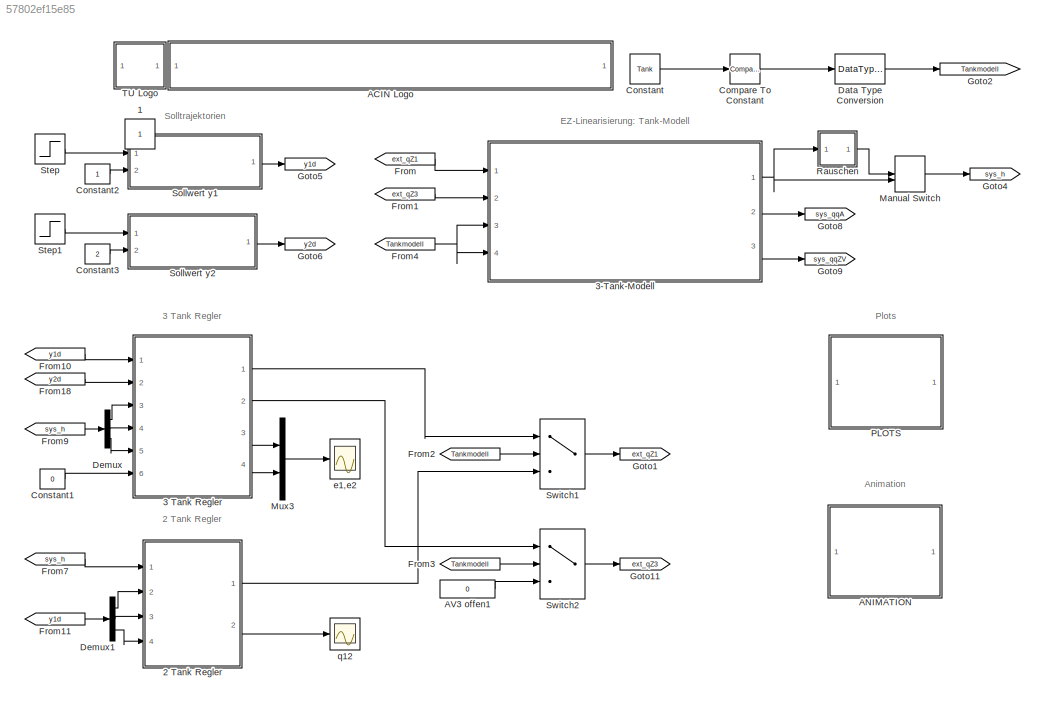
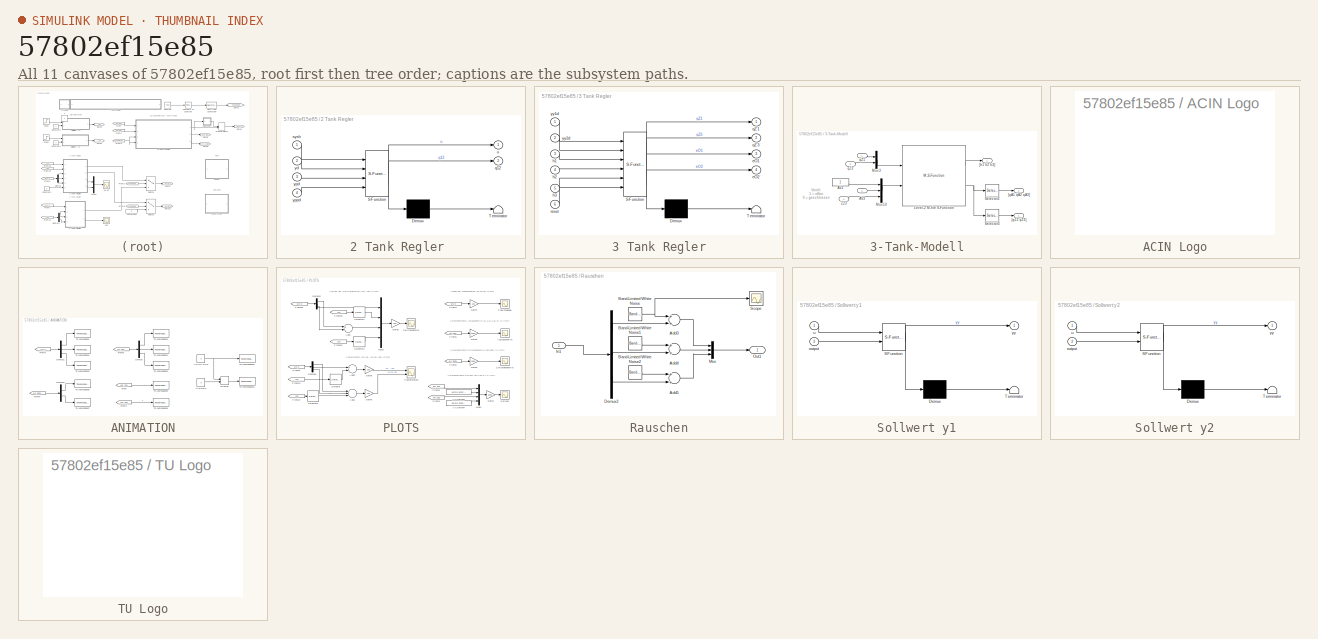
[diagram: thumbnail index - all 11 canvases of the model, root first then tree order]
MODEL slx_57802ef15e85
KIND model
CONFIG AbsTol = auto
CONFIG FixedStep = auto
CONFIG InitFcn = set_parameter
CONFIG MaxStep = 1e-1
CONFIG MinStep = auto
CONFIG RelTol = 1e-3
CONFIG SampleTimeConstraint = Unconstrained
CONFIG Solver = ode45
CONFIG SolverMode = Auto
CONFIG SolverName = ode45
CONFIG StartTime = 0.0
CONFIG StopFcn = if(exist('animation')>0 & exist('h1_out')>0)\nanimation(h1_out,h2_out,h3_out,q12_out,q23_out,a1_out,a2_out,a3_out,z1_out,z3_out,parSys.Ta,Tank,anim_on,video_on);\nend
CONFIG StopTime = 400
BLOCK [Constant] 1
  IOType = siggen
BLOCK [SubSystem] 2 Tank Regler 
  ErrorFcn = Stateflow.Translate.translate
  PermitHierarchicalResolution = ExplicitOnly
  Ports = [4, 2]
  RequestExecContextInheritance = off
  SFBlockType = MATLAB Function
  TreatAsAtomicUnit = on
  Variant = off
BLOCK [Demux] 2 Tank Regler / Demux 
  Outputs = 1
  Ports = [1, 1]
BLOCK [S-Function] 2 Tank Regler / SFunction 
  EnableBusSupport = on
  FunctionName = sf_sfun
  Parameters = parInit,parSys
  PortCounts = [4 3]
  Ports = [4, 3]
  SFunctionDeploymentMode = off
  Tag = Stateflow S-Function Tank_Modell_2015b 2
BLOCK [Terminator] 2 Tank Regler / Terminator 
BLOCK [Outport] 2 Tank Regler /q12
  IconDisplay = Port number
  Port = 2
BLOCK [Inport] 2 Tank Regler /sysh
  IconDisplay = Port number
BLOCK [Outport] 2 Tank Regler /u
  IconDisplay = Port number
BLOCK [Inport] 2 Tank Regler /yd
  IconDisplay = Port number
  Port = 2
BLOCK [Inport] 2 Tank Regler /ypd
  IconDisplay = Port number
  Port = 3
BLOCK [Inport] 2 Tank Regler /yppd
  IconDisplay = Port number
  Port = 4
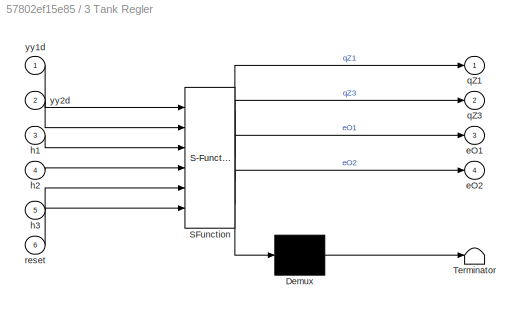
BLOCK [SubSystem] 3 Tank Regler
  ErrorFcn = Stateflow.Translate.translate
  PermitHierarchicalResolution = ExplicitOnly
  Ports = [6, 4]
  RequestExecContextInheritance = off
  SFBlockType = MATLAB Function
  TreatAsAtomicUnit = on
  Variant = off
BLOCK [Demux] 3 Tank Regler/ Demux 
  Outputs = 1
  Ports = [1, 1]
BLOCK [S-Function] 3 Tank Regler/ SFunction 
  EnableBusSupport = on
  FunctionName = sf_sfun
  Parameters = parInit,parSys
  PortCounts = [6 5]
  Ports = [6, 5]
  SFunctionDeploymentMode = off
  Tag = Stateflow S-Function Tank_Modell_2015b 3
BLOCK [Terminator] 3 Tank Regler/ Terminator 
BLOCK [Outport] 3 Tank Regler/eO1
  IconDisplay = Port number
  Port = 3
BLOCK [Outport] 3 Tank Regler/eO2
  IconDisplay = Port number
  Port = 4
BLOCK [Inport] 3 Tank Regler/h1
  IconDisplay = Port number
  Port = 3
BLOCK [Inport] 3 Tank Regler/h2
  IconDisplay = Port number
  Port = 4
BLOCK [Inport] 3 Tank Regler/h3
  IconDisplay = Port number
  Port = 5
BLOCK [Outport] 3 Tank Regler/qZ1
  IconDisplay = Port number
BLOCK [Outport] 3 Tank Regler/qZ3
  IconDisplay = Port number
  Port = 2
BLOCK [Inport] 3 Tank Regler/reset
  IconDisplay = Port number
  Port = 6
BLOCK [Inport] 3 Tank Regler/yy1d
  IconDisplay = Port number
BLOCK [Inport] 3 Tank Regler/yy2d
  IconDisplay = Port number
  Port = 2
BLOCK [SubSystem] 3-Tank-Modell
  Ports = [4, 3]
  RequestExecContextInheritance = off
  UserDataPersistent = on
  Variant = off
BLOCK [Constant] 3-Tank-Modell/AV1
BLOCK [Inport] 3-Tank-Modell/AV3
  IconDisplay = Port number
  Port = 3
BLOCK [M-S-Function] 3-Tank-Modell/Level-2 M-file S-Function
  FunctionName = dreitank_S_m
  Parameters = Atank, rho, eta, g, alphaA1, DA1, alphaA2, A2, alphaA3, DA3, alpha12_0, A12, Dh12, lambdac12, alpha23_0, D23, lambdac23, hmin, h1_0, h2_0, h3_0, qZ1max, qZ3max, flaglimqZ, h_max, h_min
  Ports = [2, 2]
BLOCK [Mux] 3-Tank-Modell/Mux10
  DisplayOption = bar
  Inputs = 3
  Ports = [3, 1]
BLOCK [Mux] 3-Tank-Modell/Mux3
  DisplayOption = bar
  Inputs = 2
  Ports = [2, 1]
BLOCK [Selector] 3-Tank-Modell/Selector2
  IndexOptions = Index vector (dialog)
  Indices = [1 2 3]
  InputPortWidth = 5
  OutputSizes = 1
  Ports = [1, 1]
BLOCK [Selector] 3-Tank-Modell/Selector3
  IndexOptions = Index vector (dialog)
  Indices = [4 5]
  InputPortWidth = 5
  OutputSizes = 1
  Ports = [1, 1]
BLOCK [Inport] 3-Tank-Modell/Z23
  IconDisplay = Port number
  Port = 4
BLOCK [Outport] 3-Tank-Modell/[h1 h2 h3]
  IconDisplay = Port number
BLOCK [Outport] 3-Tank-Modell/[q12 q23]
  IconDisplay = Port number
  Port = 3
BLOCK [Outport] 3-Tank-Modell/[qA1 qA2 qA3]
  IconDisplay = Port number
  Port = 2
BLOCK [Inport] 3-Tank-Modell/qZ1
  IconDisplay = Port number
BLOCK [Inport] 3-Tank-Modell/qZ3
  IconDisplay = Port number
  Port = 2
BLOCK [SubSystem] ACIN Logo
  Ports = []
  RequestExecContextInheritance = off
  UserDataPersistent = on
  Variant = off
BLOCK [SubSystem] ANIMATION
  Ports = []
  RequestExecContextInheritance = off
  UserDataPersistent = on
  Variant = off
BLOCK [Constant] ANIMATION/ANIMATION
  Value = 0
BLOCK [Demux] ANIMATION/Demux
  DisplayOption = bar
  Outputs = 3
  Ports = [1, 3]
BLOCK [Demux] ANIMATION/Demux1
  DisplayOption = bar
  Outputs = 3
  Ports = [1, 3]
BLOCK [Demux] ANIMATION/Demux2
  DisplayOption = bar
  Outputs = 2
  Ports = [1, 2]
BLOCK [From] ANIMATION/From
  GotoTag = ext_qZ1
  TagVisibility = global
BLOCK [From] ANIMATION/From1
  GotoTag = ext_qZ3
  TagVisibility = global
BLOCK [From] ANIMATION/From4
  GotoTag = sys_h
  TagVisibility = global
BLOCK [From] ANIMATION/From5
  GotoTag = sys_qqA
  TagVisibility = global
BLOCK [From] ANIMATION/From6
  GotoTag = sys_qqZV
  TagVisibility = global
BLOCK [MinMax] ANIMATION/MinMax
  InputSameDT = off
  Inputs = 2
  Ports = [2, 1]
  SaturateOnIntegerOverflow = off
BLOCK [ToWorkspace] ANIMATION/To Workspace
  FixptAsFi = on
  MaxDataPoints = inf
  Ports = [1]
  SampleTime = parSys.Ta
  Save2DSignal = 3-D array (concatenate along third dimension)
  VariableName = h1_out
BLOCK [ToWorkspace] ANIMATION/To Workspace1
  FixptAsFi = on
  MaxDataPoints = inf
  Ports = [1]
  SampleTime = parSys.Ta
  Save2DSignal = 3-D array (concatenate along third dimension)
  VariableName = h2_out
BLOCK [ToWorkspace] ANIMATION/To Workspace10
  FixptAsFi = on
  MaxDataPoints = inf
  Ports = [1]
  SampleTime = 50
  Save2DSignal = 3-D array (concatenate along third dimension)
  VariableName = anim_on
BLOCK [ToWorkspace] ANIMATION/To Workspace11
  FixptAsFi = on
  MaxDataPoints = inf
  Ports = [1]
  SampleTime = 50
  Save2DSignal = 3-D array (concatenate along third dimension)
  VariableName = video_on
BLOCK [ToWorkspace] ANIMATION/To Workspace2
  FixptAsFi = on
  MaxDataPoints = inf
  Ports = [1]
  SampleTime = parSys.Ta
  Save2DSignal = 3-D array (concatenate along third dimension)
  VariableName = h3_out
BLOCK [ToWorkspace] ANIMATION/To Workspace3
  FixptAsFi = on
  MaxDataPoints = inf
  Ports = [1]
  SampleTime = parSys.Ta
  Save2DSignal = 3-D array (concatenate along third dimension)
  VariableName = a1_out
BLOCK [ToWorkspace] ANIMATION/To Workspace4
  FixptAsFi = on
  MaxDataPoints = inf
  Ports = [1]
  SampleTime = parSys.Ta
  Save2DSignal = 3-D array (concatenate along third dimension)
  VariableName = a2_out
BLOCK [ToWorkspace] ANIMATION/To Workspace5
  FixptAsFi = on
  MaxDataPoints = inf
  Ports = [1]
  SampleTime = parSys.Ta
  Save2DSignal = 3-D array (concatenate along third dimension)
  VariableName = a3_out
BLOCK [ToWorkspace] ANIMATION/To Workspace6
  FixptAsFi = on
  MaxDataPoints = inf
  Ports = [1]
  SampleTime = parSys.Ta
  Save2DSignal = 3-D array (concatenate along third dimension)
  VariableName = q12_out
BLOCK [ToWorkspace] ANIMATION/To Workspace7
  FixptAsFi = on
  MaxDataPoints = inf
  Ports = [1]
  SampleTime = parSys.Ta
  Save2DSignal = 3-D array (concatenate along third dimension)
  VariableName = q23_out
BLOCK [ToWorkspace] ANIMATION/To Workspace8
  FixptAsFi = on
  MaxDataPoints = inf
  Ports = [1]
  SampleTime = parSys.Ta
  Save2DSignal = 3-D array (concatenate along third dimension)
  VariableName = z1_out
BLOCK [ToWorkspace] ANIMATION/To Workspace9
  FixptAsFi = on
  MaxDataPoints = inf
  Ports = [1]
  SampleTime = parSys.Ta
  Save2DSignal = 3-D array (concatenate along third dimension)
  VariableName = z3_out
BLOCK [Constant] ANIMATION/VIDOEO 
  Value = 0
BLOCK [Constant] AV3 offen1
  Value = 0
BLOCK [Reference] Compare To Constant  REF=simulink/Logic and Bit
Operations/Compare
To Constant
  Ports = [1, 1]
  SourceBlock = simulink/Logic and Bit\nOperations/Compare\nTo Constant
  SourceType = Compare To Constant
BLOCK [Constant] Constant
  Value = Tank
BLOCK [Constant] Constant1
  Value = 0
BLOCK [Constant] Constant2
BLOCK [Constant] Constant3
  Value = 2
BLOCK [DataTypeConversion] Data Type Conversion
  OutDataTypeStr = double
  RndMeth = Floor
  SaturateOnIntegerOverflow = off
BLOCK [Demux] Demux
  DisplayOption = bar
  Outputs = 3
  Ports = [1, 3]
BLOCK [Demux] Demux1
  DisplayOption = bar
  Outputs = 3
  Ports = [1, 3]
BLOCK [From] From
  GotoTag = ext_qZ1
  TagVisibility = global
BLOCK [From] From1
  GotoTag = ext_qZ3
  TagVisibility = global
BLOCK [From] From10
  GotoTag = y1d
  TagVisibility = global
BLOCK [From] From11
  GotoTag = y1d
  TagVisibility = global
BLOCK [From] From18
  GotoTag = y2d
  TagVisibility = global
BLOCK [From] From2
  GotoTag = Tankmodell
  TagVisibility = global
BLOCK [From] From3
  GotoTag = Tankmodell
  TagVisibility = global
BLOCK [From] From4
  GotoTag = Tankmodell
  TagVisibility = global
BLOCK [From] From7
  GotoTag = sys_h
  TagVisibility = global
BLOCK [From] From9
  GotoTag = sys_h
  TagVisibility = global
BLOCK [Goto] Goto1
  GotoTag = ext_qZ1
  TagVisibility = global
BLOCK [Goto] Goto11
  GotoTag = ext_qZ3
  TagVisibility = global
BLOCK [Goto] Goto2
  GotoTag = Tankmodell
  TagVisibility = global
BLOCK [Goto] Goto4
  GotoTag = sys_h
  TagVisibility = global
BLOCK [Goto] Goto5
  GotoTag = y1d
  TagVisibility = global
BLOCK [Goto] Goto6
  GotoTag = y2d
  TagVisibility = global
BLOCK [Goto] Goto8
  GotoTag = sys_qqA
  TagVisibility = global
BLOCK [Goto] Goto9
  GotoTag = sys_qqZV
  TagVisibility = global
BLOCK [ManualSwitch] Manual Switch
  CurrentSetting = 0
BLOCK [Mux] Mux3
  DisplayOption = bar
  Inputs = 2
  Ports = [2, 1]
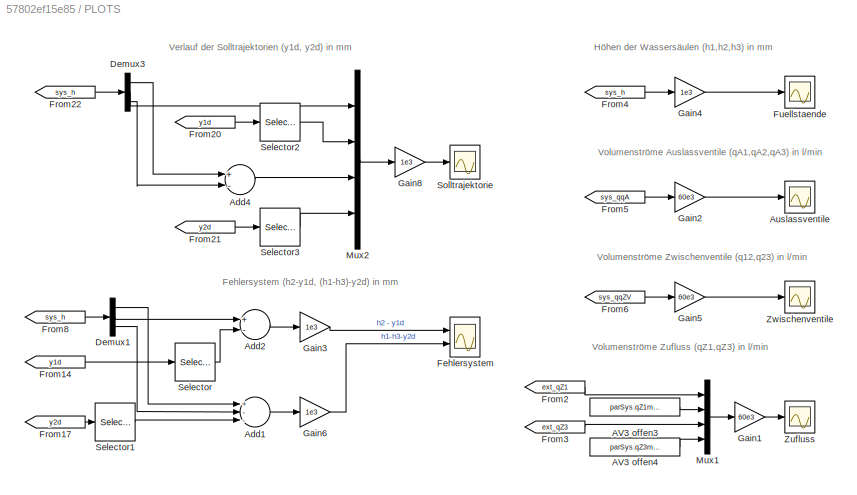
BLOCK [SubSystem] PLOTS
  Ports = []
  RequestExecContextInheritance = off
  Variant = off
BLOCK [Constant] PLOTS/AV3 offen3
  SampleTime = parSys.Ta
  Value = parSys.qZ1max
BLOCK [Constant] PLOTS/AV3 offen4
  SampleTime = parSys.Ta
  Value = parSys.qZ3max
BLOCK [Sum] PLOTS/Add1
  InputSameDT = off
  Inputs = +--
  OutDataTypeStr = Inherit: Inherit via internal rule
  Ports = [3, 1]
  SaturateOnIntegerOverflow = off
BLOCK [Sum] PLOTS/Add2
  InputSameDT = off
  Inputs = +-
  OutDataTypeStr = Inherit: Inherit via internal rule
  Ports = [2, 1]
  SaturateOnIntegerOverflow = off
BLOCK [Sum] PLOTS/Add4
  InputSameDT = off
  Inputs = +-
  OutDataTypeStr = Inherit: Inherit via internal rule
  Ports = [2, 1]
  SaturateOnIntegerOverflow = off
BLOCK [Scope] PLOTS/Auslassventile
  Ports = [1]
  ScopeSpecificationString = Simulink.scopes.TimeScopeBlockCfg('CurrentConfiguration', extmgr.ConfigurationSet(extmgr.Configuration('Core','General UI',true),extmgr.Configuration('Core','Source UI',true),extmgr.Configuration('Sources','WiredSimulink',true,'DataLoggingSaveFormat','Array','DataLoggingDecimation','1','DataLoggingDecimateData',true),extmgr.Configuration('Visuals','Time Domain',true,'SerializedDisplays',{struct('M...<+1641ch>
BLOCK [Demux] PLOTS/Demux1
  DisplayOption = bar
  Outputs = 3
  Ports = [1, 3]
BLOCK [Demux] PLOTS/Demux3
  DisplayOption = bar
  Outputs = 3
  Ports = [1, 3]
BLOCK [Scope] PLOTS/Fehlersystem
  NumInputPorts = 2
  Ports = [2]
  ScopeSpecificationString = Simulink.scopes.TimeScopeBlockCfg('CurrentConfiguration', extmgr.ConfigurationSet(extmgr.Configuration('Core','General UI',true),extmgr.Configuration('Core','Source UI',true),extmgr.Configuration('Sources','WiredSimulink',true,'DataLoggingVariableName','ScopeData2'),extmgr.Configuration('Visuals','Time Domain',true,'SerializedDisplays',{struct('MinYLimReal','-0.06404','MaxYLimReal','0.16909','YLab...<+2060ch>
BLOCK [From] PLOTS/From14
  GotoTag = y1d
  TagVisibility = global
BLOCK [From] PLOTS/From17
  GotoTag = y2d
  TagVisibility = global
BLOCK [From] PLOTS/From2
  GotoTag = ext_qZ1
  TagVisibility = global
BLOCK [From] PLOTS/From20
  GotoTag = y1d
  TagVisibility = global
BLOCK [From] PLOTS/From21
  GotoTag = y2d
  TagVisibility = global
BLOCK [From] PLOTS/From22
  GotoTag = sys_h
  TagVisibility = global
BLOCK [From] PLOTS/From3
  GotoTag = ext_qZ3
  TagVisibility = global
BLOCK [From] PLOTS/From4
  GotoTag = sys_h
  TagVisibility = global
BLOCK [From] PLOTS/From5
  GotoTag = sys_qqA
  TagVisibility = global
BLOCK [From] PLOTS/From6
  GotoTag = sys_qqZV
  TagVisibility = global
BLOCK [From] PLOTS/From8
  GotoTag = sys_h
  TagVisibility = global
BLOCK [Scope] PLOTS/Fuellstaende
  Ports = [1]
  ScopeSpecificationString = Simulink.scopes.TimeScopeBlockCfg('CurrentConfiguration', extmgr.ConfigurationSet(extmgr.Configuration('Core','General UI',true),extmgr.Configuration('Core','Source UI',true),extmgr.Configuration('Sources','WiredSimulink',true,'DataLoggingVariableName','ScopeData1','DataLoggingSaveFormat','Array','DataLoggingDecimation','1','DataLoggingDecimateData',true),extmgr.Configuration('Visuals','Time Domai...<+1699ch>
BLOCK [Gain] PLOTS/Gain1
  Gain = 60e3
  OutDataTypeStr = Inherit: Inherit via internal rule
  ParamDataTypeStr = Inherit: Inherit via internal rule
  SaturateOnIntegerOverflow = off
BLOCK [Gain] PLOTS/Gain2
  Gain = 60e3
  OutDataTypeStr = Inherit: Inherit via internal rule
  ParamDataTypeStr = Inherit: Inherit via internal rule
  SaturateOnIntegerOverflow = off
BLOCK [Gain] PLOTS/Gain3
  Gain = 1e3
  OutDataTypeStr = Inherit: Inherit via internal rule
  ParamDataTypeStr = Inherit: Inherit via internal rule
  SaturateOnIntegerOverflow = off
BLOCK [Gain] PLOTS/Gain4
  Gain = 1e3
  OutDataTypeStr = Inherit: Inherit via internal rule
  ParamDataTypeStr = Inherit: Inherit via internal rule
  SaturateOnIntegerOverflow = off
BLOCK [Gain] PLOTS/Gain5
  Gain = 60e3
  OutDataTypeStr = Inherit: Inherit via internal rule
  ParamDataTypeStr = Inherit: Inherit via internal rule
  SaturateOnIntegerOverflow = off
BLOCK [Gain] PLOTS/Gain6
  Gain = 1e3
  OutDataTypeStr = Inherit: Inherit via internal rule
  ParamDataTypeStr = Inherit: Inherit via internal rule
  SaturateOnIntegerOverflow = off
BLOCK [Gain] PLOTS/Gain8
  Gain = 1e3
  OutDataTypeStr = Inherit: Inherit via internal rule
  ParamDataTypeStr = Inherit: Inherit via internal rule
  SaturateOnIntegerOverflow = off
BLOCK [Mux] PLOTS/Mux1
  DisplayOption = bar
  Ports = [4, 1]
BLOCK [Mux] PLOTS/Mux2
  DisplayOption = bar
  Ports = [4, 1]
BLOCK [Selector] PLOTS/Selector
  IndexOptions = Index vector (dialog)
  Indices = [1]
  InputPortWidth = 3
  OutputSizes = 1
  Ports = [1, 1]
BLOCK [Selector] PLOTS/Selector1
  IndexOptions = Index vector (dialog)
  Indices = [1]
  InputPortWidth = 3
  OutputSizes = 1
  Ports = [1, 1]
BLOCK [Selector] PLOTS/Selector2
  IndexOptions = Index vector (dialog)
  Indices = [1]
  InputPortWidth = 3
  OutputSizes = 1
  Ports = [1, 1]
BLOCK [Selector] PLOTS/Selector3
  IndexOptions = Index vector (dialog)
  Indices = [1]
  InputPortWidth = 3
  OutputSizes = 1
  Ports = [1, 1]
BLOCK [Scope] PLOTS/Solltrajektorie
  Ports = [1]
  ScopeSpecificationString = Simulink.scopes.TimeScopeBlockCfg('CurrentConfiguration', extmgr.ConfigurationSet(extmgr.Configuration('Core','General UI',true),extmgr.Configuration('Core','Source UI',true),extmgr.Configuration('Sources','WiredSimulink',true,'DataLoggingVariableName','ScopeData1'),extmgr.Configuration('Visuals','Time Domain',true,'SerializedDisplays',{struct('MinYLimReal','-183.12885','MaxYLimReal','409.94431','...<+1471ch>
BLOCK [Scope] PLOTS/Zufluss
  Ports = [1]
  ScopeSpecificationString = Simulink.scopes.TimeScopeBlockCfg('CurrentConfiguration', extmgr.ConfigurationSet(extmgr.Configuration('Core','General UI',true),extmgr.Configuration('Core','Source UI',true),extmgr.Configuration('Sources','WiredSimulink',true,'DataLoggingVariableName','ScopeData3','DataLoggingSaveFormat','Array','DataLoggingDecimation','1','DataLoggingDecimateData',true),extmgr.Configuration('Visuals','Time Domai...<+1713ch>
BLOCK [Scope] PLOTS/Zwischenventile
  Ports = [1]
  ScopeSpecificationString = Simulink.scopes.TimeScopeBlockCfg('CurrentConfiguration', extmgr.ConfigurationSet(extmgr.Configuration('Core','General UI',true),extmgr.Configuration('Core','Source UI',true),extmgr.Configuration('Sources','WiredSimulink',true,'DataLoggingVariableName','ScopeData2','DataLoggingSaveFormat','Array','DataLoggingDecimation','1','DataLoggingDecimateData',true),extmgr.Configuration('Visuals','Time Domai...<+1644ch>
BLOCK [SubSystem] Rauschen
  Ports = [1, 1]
  RequestExecContextInheritance = off
  Variant = off
BLOCK [Sum] Rauschen/Add3
  InputSameDT = off
  OutDataTypeStr = Inherit: Inherit via internal rule
  Ports = [2, 1]
  SaturateOnIntegerOverflow = off
BLOCK [Sum] Rauschen/Add4
  InputSameDT = off
  OutDataTypeStr = Inherit: Inherit via internal rule
  Ports = [2, 1]
  SaturateOnIntegerOverflow = off
BLOCK [Sum] Rauschen/Add5
  InputSameDT = off
  OutDataTypeStr = Inherit: Inherit via internal rule
  Ports = [2, 1]
  SaturateOnIntegerOverflow = off
BLOCK [Reference] Rauschen/Band-Limited White Noise  REF=simulink/Sources/Band-Limited
White Noise
  Ports = [0, 1]
  SourceBlock = simulink/Sources/Band-Limited\nWhite Noise
  SourceType = Band-Limited White Noise.
BLOCK [Reference] Rauschen/Band-Limited White Noise1  REF=simulink/Sources/Band-Limited
White Noise
  Ports = [0, 1]
  SourceBlock = simulink/Sources/Band-Limited\nWhite Noise
  SourceType = Band-Limited White Noise.
BLOCK [Reference] Rauschen/Band-Limited White Noise2  REF=simulink/Sources/Band-Limited
White Noise
  Ports = [0, 1]
  SourceBlock = simulink/Sources/Band-Limited\nWhite Noise
  SourceType = Band-Limited White Noise.
BLOCK [Demux] Rauschen/Demux2
  DisplayOption = bar
  Outputs = 3
  Ports = [1, 3]
BLOCK [Inport] Rauschen/In1
  IconDisplay = Port number
BLOCK [Mux] Rauschen/Mux
  DisplayOption = bar
  Inputs = 3
  Ports = [3, 1]
BLOCK [Outport] Rauschen/Out1
  IconDisplay = Port number
BLOCK [Scope] Rauschen/Scope
  Ports = [1]
  ScopeSpecificationString = Simulink.scopes.TimeScopeBlockCfg('CurrentConfiguration', extmgr.ConfigurationSet(extmgr.Configuration('Core','General UI',true),extmgr.Configuration('Core','Source UI',true),extmgr.Configuration('Sources','WiredSimulink',true,'DataLoggingVariableName','ScopeData1'),extmgr.Configuration('Visuals','Time Domain',true,'SerializedDisplays',{struct('MinYLimReal','-0.00016','MaxYLimReal','0.00017','YLab...<+1458ch>
BLOCK [SubSystem] Sollwert y1
  ErrorFcn = Stateflow.Translate.translate
  PermitHierarchicalResolution = ExplicitOnly
  Ports = [2, 1]
  RequestExecContextInheritance = off
  SFBlockType = MATLAB Function
  SystemSampleTime = parSollwertfilter.Ta
  TreatAsAtomicUnit = on
  Variant = off
BLOCK [Demux] Sollwert y1/ Demux 
  Outputs = 1
  Ports = [1, 1]
BLOCK [S-Function] Sollwert y1/ SFunction 
  EnableBusSupport = on
  FunctionName = sf_sfun
  Parameters = parSollwertfilter,parSys
  PortCounts = [2 2]
  Ports = [2, 2]
  SFunctionDeploymentMode = off
  Tag = Stateflow S-Function Tank_Modell_2015b 1
BLOCK [Terminator] Sollwert y1/ Terminator 
BLOCK [Inport] Sollwert y1/output
  IconDisplay = Port number
  Port = 2
BLOCK [Inport] Sollwert y1/u
  IconDisplay = Port number
BLOCK [Outport] Sollwert y1/yy
  IconDisplay = Port number
BLOCK [SubSystem] Sollwert y2
  ErrorFcn = Stateflow.Translate.translate
  PermitHierarchicalResolution = ExplicitOnly
  Ports = [2, 1]
  RequestExecContextInheritance = off
  SFBlockType = MATLAB Function
  SystemSampleTime = parSollwertfilter.Ta
  TreatAsAtomicUnit = on
  Variant = off
BLOCK [Demux] Sollwert y2/ Demux 
  Outputs = 1
  Ports = [1, 1]
BLOCK [S-Function] Sollwert y2/ SFunction 
  EnableBusSupport = on
  FunctionName = sf_sfun
  Parameters = parSollwertfilter,parSys
  PortCounts = [2 2]
  Ports = [2, 2]
  SFunctionDeploymentMode = off
  Tag = Stateflow S-Function Tank_Modell_2015b 4
BLOCK [Terminator] Sollwert y2/ Terminator 
BLOCK [Inport] Sollwert y2/output
  IconDisplay = Port number
  Port = 2
BLOCK [Inport] Sollwert y2/u
  IconDisplay = Port number
BLOCK [Outport] Sollwert y2/yy
  IconDisplay = Port number
BLOCK [Step] Step
  After = parSys.h2_0+parSys.deltay1d
  Before = parSys.h2_0
  SampleTime = 0
BLOCK [Step] Step1
  After = parSys.h1_0-parSys.h3_0+parSys.deltay2d
  Before = parSys.h1_0-parSys.h3_0
  SampleTime = 0
BLOCK [Switch] Switch1
  Criteria = u2 > Threshold
  InputSameDT = off
  SaturateOnIntegerOverflow = off
BLOCK [Switch] Switch2
  Criteria = u2 > Threshold
  InputSameDT = off
  SaturateOnIntegerOverflow = off
BLOCK [SubSystem] TU Logo
  Ports = []
  RequestExecContextInheritance = off
  UserDataPersistent = on
  Variant = off
BLOCK [Scope] e1,e2
  Ports = [1]
  ScopeSpecificationString = Simulink.scopes.TimeScopeBlockCfg('CurrentConfiguration', extmgr.ConfigurationSet(extmgr.Configuration('Core','General UI',true),extmgr.Configuration('Core','Source UI',true),extmgr.Configuration('Sources','WiredSimulink',true,'DataLoggingVariableName','ScopeData1'),extmgr.Configuration('Visuals','Time Domain',true,'SerializedDisplays',{struct('MinYLimReal','-0.19673','MaxYLimReal','0.30319','YLab...<+1461ch>
BLOCK [Scope] q12
  Ports = [1]
  ScopeSpecificationString = Simulink.scopes.TimeScopeBlockCfg('CurrentConfiguration', extmgr.ConfigurationSet(extmgr.Configuration('Core','General UI',true),extmgr.Configuration('Core','Source UI',true),extmgr.Configuration('Sources','WiredSimulink',true,'DataLoggingVariableName','ScopeData4','DataLoggingSaveFormat','Array','DataLoggingDecimation','1','DataLoggingDecimateData',true),extmgr.Configuration('Visuals','Time Domai...<+1662ch>
ANNOTATION (root): 2 Tank Regler
ANNOTATION (root): 3 Tank Regler
ANNOTATION (root): Animation
ANNOTATION (root): EZ-Linearisierung: Tank-Modell
ANNOTATION (root): Plots
ANNOTATION (root): Solltrajektorien
ANNOTATION 3-Tank-Modell: Ventil: 1 = offen 0 = geschlossen
ANNOTATION PLOTS: Fehlersystem (h2-y1d, (h1-h3)-y2d) in mm
ANNOTATION PLOTS: Höhen der Wassersäulen (h1,h2,h3) in mm
ANNOTATION PLOTS: Verlauf der Solltrajektorien (y1d, y2d) in mm
ANNOTATION PLOTS: Volumenströme Auslassventile (qA1,qA2,qA3) in l/min
ANNOTATION PLOTS: Volumenströme Zufluss (qZ1,qZ3) in l/min
ANNOTATION PLOTS: Volumenströme Zwischenventile (q12,q23) in l/min
LINE 2 Tank Regler :1 -> Switch1:3
LINE 2 Tank Regler :2 -> q12:1
LINE 3 Tank Regler:1 -> Switch1:1
LINE 3 Tank Regler:2 -> Switch2:1
LINE 3 Tank Regler:3 -> Mux3:1
LINE 3 Tank Regler:4 -> Mux3:2
LINE 3-Tank-Modell/AV1:1 -> 3-Tank-Modell/Mux10:1
LINE 3-Tank-Modell/AV3:1 -> 3-Tank-Modell/Mux10:2
LINE 3-Tank-Modell/Level-2 M-file S-Function:1 -> 3-Tank-Modell/[h1 h2 h3]:1
NET 3-Tank-Modell/Level-2 M-file S-Function:2 -> 3-Tank-Modell/Selector2:1, 3-Tank-Modell/Selector3:1
LINE 3-Tank-Modell/Mux10:1 -> 3-Tank-Modell/Level-2 M-file S-Function:2
LINE 3-Tank-Modell/Mux3:1 -> 3-Tank-Modell/Level-2 M-file S-Function:1
LINE 3-Tank-Modell/Selector2:1 -> 3-Tank-Modell/[qA1 qA2 qA3]:1
LINE 3-Tank-Modell/Selector3:1 -> 3-Tank-Modell/[q12 q23]:1
LINE 3-Tank-Modell/Z23:1 -> 3-Tank-Modell/Mux10:3
LINE 3-Tank-Modell/qZ1:1 -> 3-Tank-Modell/Mux3:1
LINE 3-Tank-Modell/qZ3:1 -> 3-Tank-Modell/Mux3:2
NET 3-Tank-Modell:1 -> Manual Switch:2, Rauschen:1
LINE 3-Tank-Modell:2 -> Goto8:1
LINE 3-Tank-Modell:3 -> Goto9:1
NET ANIMATION/ANIMATION:1 -> ANIMATION/MinMax:1, ANIMATION/To Workspace10:1
LINE ANIMATION/Demux1:1 -> ANIMATION/To Workspace:1
LINE ANIMATION/Demux1:2 -> ANIMATION/To Workspace1:1
LINE ANIMATION/Demux1:3 -> ANIMATION/To Workspace2:1
LINE ANIMATION/Demux2:1 -> ANIMATION/To Workspace6:1
LINE ANIMATION/Demux2:2 -> ANIMATION/To Workspace7:1
LINE ANIMATION/Demux:1 -> ANIMATION/To Workspace3:1
LINE ANIMATION/Demux:2 -> ANIMATION/To Workspace4:1
LINE ANIMATION/Demux:3 -> ANIMATION/To Workspace5:1
LINE ANIMATION/From1:1 -> ANIMATION/To Workspace9:1
LINE ANIMATION/From4:1 -> ANIMATION/Demux1:1
LINE ANIMATION/From5:1 -> ANIMATION/Demux:1
LINE ANIMATION/From6:1 -> ANIMATION/Demux2:1
LINE ANIMATION/From:1 -> ANIMATION/To Workspace8:1
LINE ANIMATION/MinMax:1 -> ANIMATION/To Workspace11:1
LINE ANIMATION/VIDOEO :1 -> ANIMATION/MinMax:2
LINE AV3 offen1:1 -> Switch2:3
LINE Compare To Constant:1 -> Data Type Conversion:1
LINE Constant1:1 -> 3 Tank Regler:6
LINE Constant2:1 -> Sollwert y1:2
LINE Constant3:1 -> Sollwert y2:2
LINE Constant:1 -> Compare To Constant:1
LINE Data Type Conversion:1 -> Goto2:1
LINE Demux1:1 -> 2 Tank Regler :2
LINE Demux1:2 -> 2 Tank Regler :3
LINE Demux1:3 -> 2 Tank Regler :4
LINE Demux:1 -> 3 Tank Regler:3
LINE Demux:2 -> 3 Tank Regler:4
LINE Demux:3 -> 3 Tank Regler:5
LINE From10:1 -> 3 Tank Regler:1
LINE From11:1 -> Demux1:1
LINE From18:1 -> 3 Tank Regler:2
LINE From1:1 -> 3-Tank-Modell:2
LINE From2:1 -> Switch1:2
LINE From3:1 -> Switch2:2
NET From4:1 -> 3-Tank-Modell:3, 3-Tank-Modell:4
LINE From7:1 -> 2 Tank Regler :1
LINE From9:1 -> Demux:1
LINE From:1 -> 3-Tank-Modell:1
LINE Manual Switch:1 -> Goto4:1
LINE Mux3:1 -> e1,e2:1
LINE PLOTS/AV3 offen3:1 -> PLOTS/Mux1:2
LINE PLOTS/AV3 offen4:1 -> PLOTS/Mux1:4
LINE PLOTS/Add1:1 -> PLOTS/Gain6:1
LINE PLOTS/Add2:1 -> PLOTS/Gain3:1
LINE PLOTS/Add4:1 -> PLOTS/Mux2:3
LINE PLOTS/Demux1:1 -> PLOTS/Add1:1
LINE PLOTS/Demux1:2 -> PLOTS/Add2:1
LINE PLOTS/Demux1:3 -> PLOTS/Add1:2
LINE PLOTS/Demux3:1 -> PLOTS/Add4:1
LINE PLOTS/Demux3:2 -> PLOTS/Mux2:1
LINE PLOTS/Demux3:3 -> PLOTS/Add4:2
LINE PLOTS/From14:1 -> PLOTS/Selector:1
LINE PLOTS/From17:1 -> PLOTS/Selector1:1
LINE PLOTS/From20:1 -> PLOTS/Selector2:1
LINE PLOTS/From21:1 -> PLOTS/Selector3:1
LINE PLOTS/From22:1 -> PLOTS/Demux3:1
LINE PLOTS/From2:1 -> PLOTS/Mux1:1
LINE PLOTS/From3:1 -> PLOTS/Mux1:3
LINE PLOTS/From4:1 -> PLOTS/Gain4:1
LINE PLOTS/From5:1 -> PLOTS/Gain2:1
LINE PLOTS/From6:1 -> PLOTS/Gain5:1
LINE PLOTS/From8:1 -> PLOTS/Demux1:1
LINE PLOTS/Gain1:1 -> PLOTS/Zufluss:1
LINE PLOTS/Gain2:1 -> PLOTS/Auslassventile:1
LINE PLOTS/Gain3:1 -> PLOTS/Fehlersystem:1
LINE PLOTS/Gain4:1 -> PLOTS/Fuellstaende:1
LINE PLOTS/Gain5:1 -> PLOTS/Zwischenventile:1
LINE PLOTS/Gain6:1 -> PLOTS/Fehlersystem:2
LINE PLOTS/Gain8:1 -> PLOTS/Solltrajektorie:1
LINE PLOTS/Mux1:1 -> PLOTS/Gain1:1
LINE PLOTS/Mux2:1 -> PLOTS/Gain8:1
LINE PLOTS/Selector1:1 -> PLOTS/Add1:3
LINE PLOTS/Selector2:1 -> PLOTS/Mux2:2
LINE PLOTS/Selector3:1 -> PLOTS/Mux2:4
LINE PLOTS/Selector:1 -> PLOTS/Add2:2
LINE Rauschen/Add3:1 -> Rauschen/Mux:1
LINE Rauschen/Add4:1 -> Rauschen/Mux:2
LINE Rauschen/Add5:1 -> Rauschen/Mux:3
LINE Rauschen/Band-Limited White Noise1:1 -> Rauschen/Add4:1
LINE Rauschen/Band-Limited White Noise2:1 -> Rauschen/Add5:1
NET Rauschen/Band-Limited White Noise:1 -> Rauschen/Add3:1, Rauschen/Scope:1
LINE Rauschen/Demux2:1 -> Rauschen/Add3:2
LINE Rauschen/Demux2:2 -> Rauschen/Add4:2
LINE Rauschen/Demux2:3 -> Rauschen/Add5:2
LINE Rauschen/In1:1 -> Rauschen/Demux2:1
LINE Rauschen/Mux:1 -> Rauschen/Out1:1
LINE Rauschen:1 -> Manual Switch:1
LINE Sollwert y1:1 -> Goto5:1
LINE Sollwert y2:1 -> Goto6:1
LINE Step1:1 -> Sollwert y2:1
LINE Step:1 -> Sollwert y1:1
LINE Switch1:1 -> Goto1:1
LINE Switch2:1 -> Goto11:1
note: NET lines group one-source signal fan-out (src -> all destinations, sorted); 1:1 wires keep LINE
CHART Sollwert y1 states=1 transitions=1
  STATE_LABEL 'eML_blk_kernel()'
  STATE_LABEL 'SCRIPT:\nfunction yy  = sollwertfilter(u, output, parSollwertfilter, parSys)\npersistent x;\n\nif output < 1.5\n    u = u-parSys.h2_0; % 2 Tank: Anfangswert abziehen\nelse\n    u = u-parSys.h1_0+parSys.h3_0; % 3 Tank: Anfangswert abziehen\nend\n\na=parSollwertfilter.a;\nb=parSollwertfilter.b;\nc=parSollwertfilter.c;\nd=parSollwertfilter.d;\n\nif(isempty(x))\n    x0_Filter=parSollwertfilter.x0_Filter;\n    x=x0_Fil...<+238ch>'
CHART 2 Tank Regler
 states=1 transitions=1
  STATE_LABEL 'eML_blk_kernel()'
  STATE_LABEL 'SCRIPT:\nfunction [u,q12]  = fcn(sysh, parSys, yd, ypd, yppd, parInit)\n\nAtank = parSys.Atank;\nrho = parSys.rho;\neta = parSys.eta;\ng = parSys.g;\nalphaA1 = parSys.alphaA1;\nDA1 = parSys.DA1;\nalphaA2 = parSys.alphaA2;\nA2 = parSys.A2;\nalphaA3 = parSys.alphaA3;\nDA3 = parSys.DA3;\nalpha12_0 = parSys.alpha12_0;\nA12 = parSys.A12;\nDh12 = parSys.Dh12;\nlambdac12 = parSys.lambdac12;\nalpha23_0 = parSys.alpha23_0;...<+1638ch>'
CHART 3 Tank Regler states=1 transitions=1
  STATE_LABEL 'eML_blk_kernel()'
  STATE_LABEL 'SCRIPT:\nfunction [qZ1,qZ3,eO1,eO2]  = fcn(yy1d, yy2d, h1, h2, h3, reset, parSys, parInit)\n\npersistent e1\npersistent e2\n\nif isempty(e1)\n    e1 = 0;\nend\n\nif isempty(e2)\n    e2 = 0;\nend\n\nif reset\n    e1 = 0;\n    e2 = 0;\nend\n    \n\nAtank = parSys.Atank;\nrho = parSys.rho;\neta = parSys.eta;\ng = parSys.g;\nalphaA1 = parSys.alphaA1;\nDA1 = parSys.DA1;\nalphaA2 = parSys.alphaA2;\nA2 = parSys.A2;\nalphaA3 = parSy...<+3608ch>'
CHART Sollwert y2 states=1 transitions=1
  STATE_LABEL 'eML_blk_kernel()'
  STATE_LABEL 'SCRIPT:\nfunction yy  = sollwertfilter(u, output, parSollwertfilter, parSys)\npersistent x;\n\nif output < 1.5\n    u = u-parSys.h2_0; % Anfangswert abziehen\nelse\n    u = u-parSys.h1_0+parSys.h3_0;\nend\n\na=parSollwertfilter.a;\nb=parSollwertfilter.b;\nc=parSollwertfilter.c;\nd=parSollwertfilter.d;\n\nif(isempty(x))\n    x0_Filter=parSollwertfilter.x0_Filter;\n    x=x0_Filter;\nend\n\nyt=c*x+d*u;\n\nif output < 1.5\n...<+184ch>'
